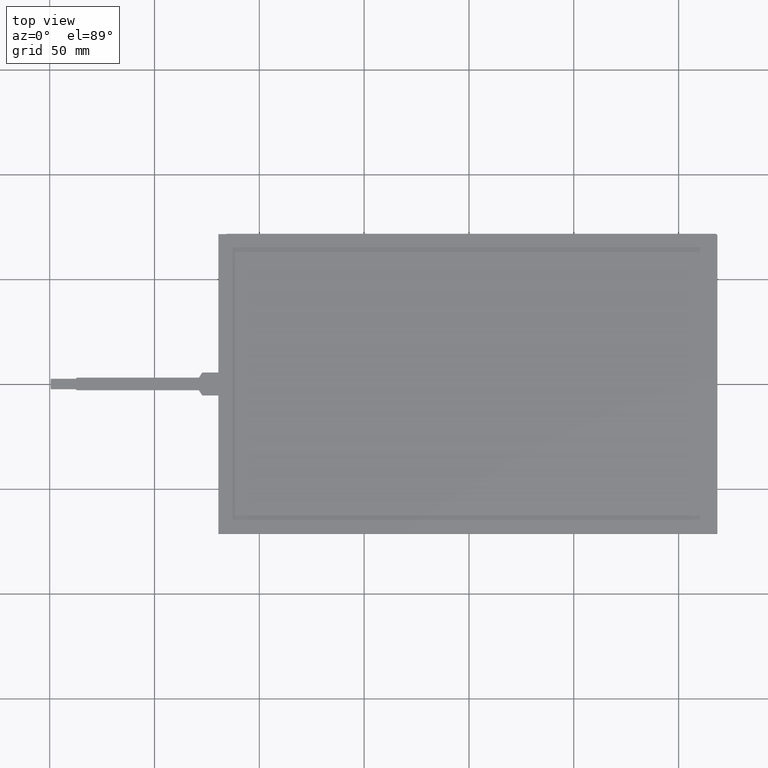
[diagram: clean part render]
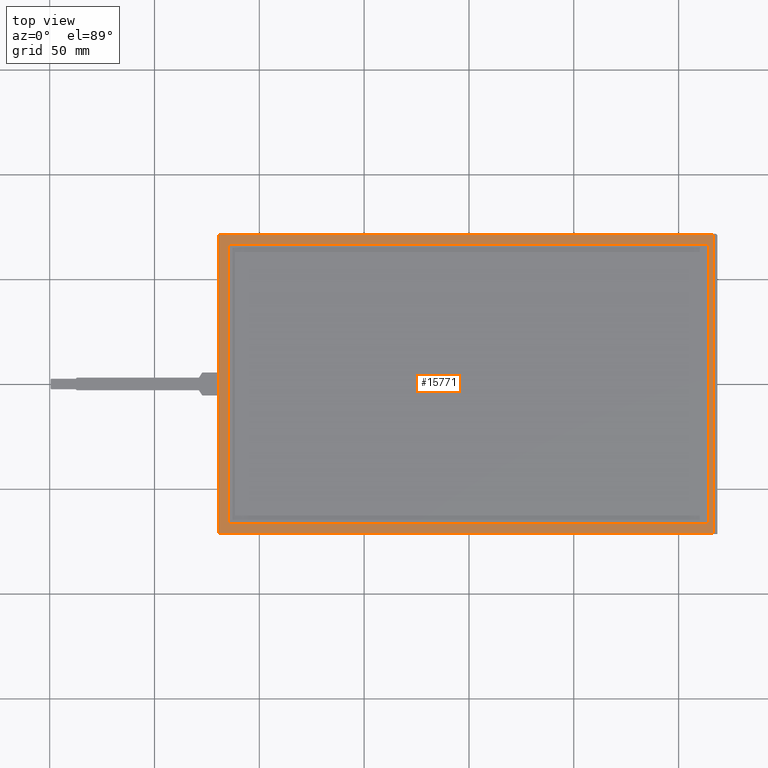
[diagram: same view with one face highlighted and labeled with its STEP entity id]
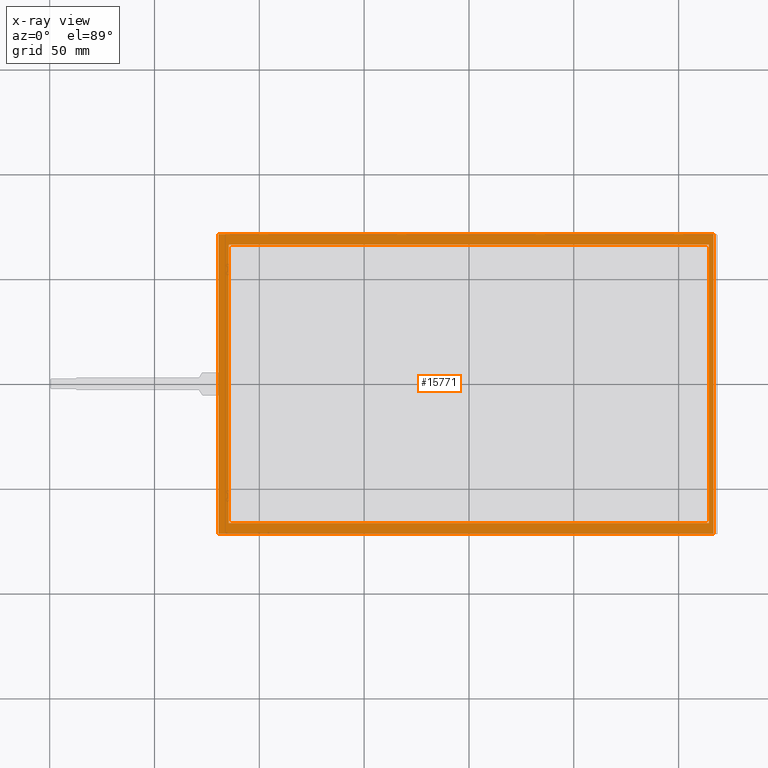
[diagram: x-ray of the same camera — body ghosted, the highlighted face saturated]
A machine part, top view. The second image highlights one B-rep face of the part: STEP entity #15771.
The next image is the same camera in x-ray: the body ghosted, the highlighted face saturated — about 0% of this face is hidden behind the body in this view.
In plain terms, the highlighted planar face has unit normal (-0, -0, 1).
Its self-contained STEP definition (entity closure, byte-faithful):
#398=FACE_BOUND('',#1364,.T.);
#514=FACE_OUTER_BOUND('',#1363,.T.);
#1363=EDGE_LOOP('',(#10487,#10488,#10489,#10490));
#1364=EDGE_LOOP('',(#10491,#10492,#10493,#10494));
#2315=LINE('',#22061,#4410);
#2334=LINE('',#22099,#4429);
#2338=LINE('',#22107,#4433);
#2341=LINE('',#22113,#4436);
#2344=LINE('',#22118,#4439);
#2346=LINE('',#22123,#4441);
#2347=LINE('',#22125,#4442);
#2348=LINE('',#22126,#4443);
#4410=VECTOR('',#17791,10.);
#4429=VECTOR('',#17820,10.);
#4433=VECTOR('',#17826,10.);
#4436=VECTOR('',#17831,10.);
#4439=VECTOR('',#17836,10.);
#4441=VECTOR('',#17842,10.);
#4442=VECTOR('',#17843,10.);
#4443=VECTOR('',#17844,10.);
#6489=VERTEX_POINT('',#22059);
#6490=VERTEX_POINT('',#22060);
#6503=VERTEX_POINT('',#22097);
#6504=VERTEX_POINT('',#22098);
#6507=VERTEX_POINT('',#22106);
#6509=VERTEX_POINT('',#22112);
#6511=VERTEX_POINT('',#22122);
#6512=VERTEX_POINT('',#22124);
#8047=EDGE_CURVE('',#6489,#6490,#2315,.T.);
#8066=EDGE_CURVE('',#6503,#6504,#2334,.T.);
#8070=EDGE_CURVE('',#6507,#6503,#2338,.T.);
#8073=EDGE_CURVE('',#6509,#6507,#2341,.T.);
#8076=EDGE_CURVE('',#6504,#6509,#2344,.T.);
#8078=EDGE_CURVE('',#6511,#6489,#2346,.T.);
#8079=EDGE_CURVE('',#6490,#6512,#2347,.T.);
#8080=EDGE_CURVE('',#6512,#6511,#2348,.T.);
#10487=ORIENTED_EDGE('',*,*,#8078,.T.);
#10488=ORIENTED_EDGE('',*,*,#8047,.T.);
#10489=ORIENTED_EDGE('',*,*,#8079,.T.);
#10490=ORIENTED_EDGE('',*,*,#8080,.T.);
#10491=ORIENTED_EDGE('',*,*,#8066,.T.);
#10492=ORIENTED_EDGE('',*,*,#8076,.T.);
#10493=ORIENTED_EDGE('',*,*,#8073,.T.);
#10494=ORIENTED_EDGE('',*,*,#8070,.T.);
#15054=PLANE('',#16639);
#15771=ADVANCED_FACE('',(#514,#398),#15054,.T.);
#16639=AXIS2_PLACEMENT_3D('',#22121,#17840,#17841);
#17791=DIRECTION('',(2.5241585031677E-16,-1.,7.16823349862873E-49));
#17820=DIRECTION('',(6.1232339957368E-17,-1.,0.));
#17826=DIRECTION('',(1.,6.1232339957368E-17,3.74939945665466E-33));
#17831=DIRECTION('',(-3.32976942309511E-16,1.,-1.01887906440796E-48));
#17836=DIRECTION('',(-1.,-2.16359127085152E-16,-3.74939945665466E-33));
#17840=DIRECTION('center_axis',(-3.74939945665466E-33,-2.29584502165849E-49,
1.));
#17841=DIRECTION('ref_axis',(1.,6.1232339957368E-17,3.74939945665466E-33));
#17842=DIRECTION('',(-1.,-6.1232339957368E-17,-3.74939945665466E-33));
#17843=DIRECTION('',(1.,1.74616819068022E-16,3.74939945665466E-33));
#17844=DIRECTION('',(-6.1232339957368E-17,1.,0.));
#22059=CARTESIAN_POINT('',(-119.56,71.5,-4.48278199037632E-31));
#22060=CARTESIAN_POINT('',(-119.56,-71.5,-4.48278199037632E-31));
#22061=CARTESIAN_POINT('',(-119.56,71.5,-4.48278199037632E-31));
#22097=CARTESIAN_POINT('',(114.41,66.39,4.2896879183586E-31));
#22098=CARTESIAN_POINT('',(114.41,-66.39,4.2896879183586E-31));
#22099=CARTESIAN_POINT('',(114.41,33.195,4.2896879183586E-31));
#22106=CARTESIAN_POINT('',(-114.61,66.39,-4.29718671727191E-31));
#22107=CARTESIAN_POINT('',(-58.21,66.39,-2.18252542371868E-31));
#22112=CARTESIAN_POINT('',(-114.61,-66.39,-4.29718671727191E-31));
#22113=CARTESIAN_POINT('',(-114.61,-33.195,-4.29718671727191E-31));
#22118=CARTESIAN_POINT('',(56.3,-66.39,2.11091189409658E-31));
#22121=CARTESIAN_POINT('Origin',(-1.81000000000002,-1.34335068308247E-14,
-6.78641301654502E-33));
#22122=CARTESIAN_POINT('',(116.71,71.5,4.37592410586166E-31));
#22123=CARTESIAN_POINT('',(115.69,71.5,4.33768023140378E-31));
#22124=CARTESIAN_POINT('',(116.71,-71.5,4.37592410586166E-31));
#22125=CARTESIAN_POINT('',(-119.31,-71.5,-4.47340849173468E-31));
#22126=CARTESIAN_POINT('',(116.71,-71.5,4.37592410586166E-31));